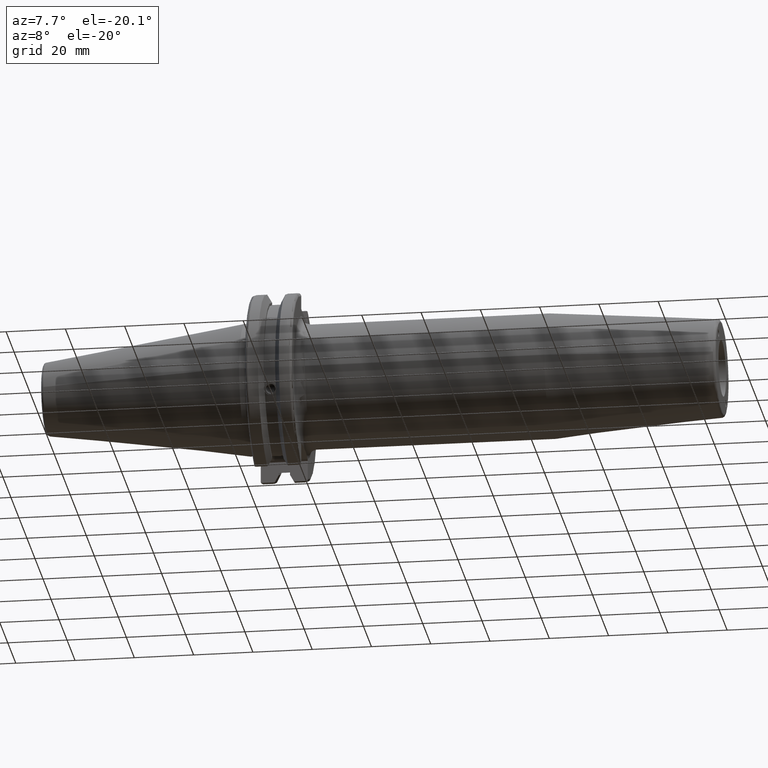
[diagram: clean part render]
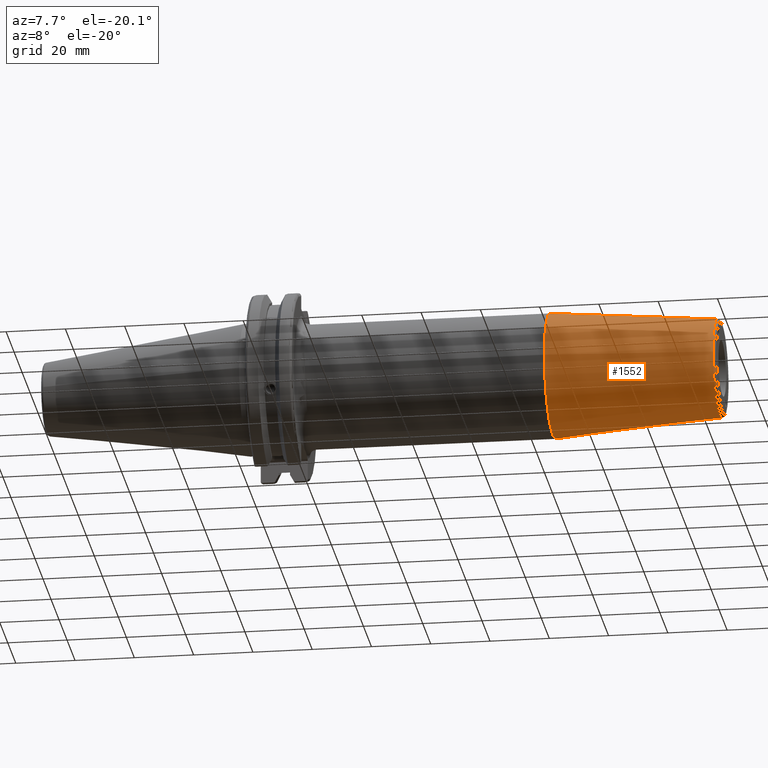
[diagram: same view with one face highlighted and labeled with its STEP entity id]
A machine part, auxiliary view. The second image highlights one B-rep face of the part: STEP entity #1552.
In plain terms, the highlighted conical surface has half-angle 4.5 deg.
Its self-contained STEP definition (entity closure, byte-faithful):
#183=FACE_OUTER_BOUND('',#274,.T.);
#274=EDGE_LOOP('',(#1067,#1068,#1069,#1070,#1071));
#381=LINE('',#2347,#478);
#478=VECTOR('',#1881,18.75);
#575=CIRCLE('',#1672,16.5725268420749);
#576=CIRCLE('',#1673,16.5725268420749);
#577=CIRCLE('',#1675,21.);
#653=VERTEX_POINT('',#2340);
#654=VERTEX_POINT('',#2342);
#655=VERTEX_POINT('',#2346);
#816=EDGE_CURVE('',#653,#654,#575,.T.);
#817=EDGE_CURVE('',#654,#653,#576,.T.);
#818=EDGE_CURVE('',#654,#655,#381,.T.);
#819=EDGE_CURVE('',#655,#655,#577,.T.);
#1067=ORIENTED_EDGE('',*,*,#817,.F.);
#1068=ORIENTED_EDGE('',*,*,#818,.T.);
#1069=ORIENTED_EDGE('',*,*,#819,.T.);
#1070=ORIENTED_EDGE('',*,*,#818,.F.);
#1071=ORIENTED_EDGE('',*,*,#816,.F.);
#1534=CONICAL_SURFACE('',#1674,18.75,0.0785398163397448);
#1552=ADVANCED_FACE('',(#183),#1534,.T.);
#1672=AXIS2_PLACEMENT_3D('',#2343,#1875,#1876);
#1673=AXIS2_PLACEMENT_3D('',#2344,#1877,#1878);
#1674=AXIS2_PLACEMENT_3D('',#2345,#1879,#1880);
#1675=AXIS2_PLACEMENT_3D('',#2348,#1882,#1883);
#1875=DIRECTION('center_axis',(1.,0.,0.));
#1876=DIRECTION('ref_axis',(0.,-1.,3.06161699786838E-17));
#1877=DIRECTION('center_axis',(1.,0.,0.));
#1878=DIRECTION('ref_axis',(0.,-1.,3.06161699786838E-17));
#1879=DIRECTION('center_axis',(-1.,0.,0.));
#1880=DIRECTION('ref_axis',(0.,1.,0.));
#1881=DIRECTION('',(-0.996917333733128,-0.0784590957278449,-9.60846804471011E-18));
#1882=DIRECTION('center_axis',(1.,0.,0.));
#1883=DIRECTION('ref_axis',(0.,0.,-1.));
#2340=CARTESIAN_POINT('',(159.078459095728,-2.02954919509306E-15,16.5725268420749));
#2342=CARTESIAN_POINT('',(159.078459095728,-16.5725268420749,-2.02954919509306E-15));
#2343=CARTESIAN_POINT('Origin',(159.078459095728,0.,-2.53693649386633E-15));
#2344=CARTESIAN_POINT('Origin',(159.078459095728,0.,-2.53693649386633E-15));
#2345=CARTESIAN_POINT('Origin',(131.411039343607,0.,0.));
#2346=CARTESIAN_POINT('',(102.822078687214,-21.,-2.57175827820944E-15));
#2347=CARTESIAN_POINT('',(131.411039343607,-18.75,-2.29621274840129E-15));
#2348=CARTESIAN_POINT('Origin',(102.822078687214,0.,0.));